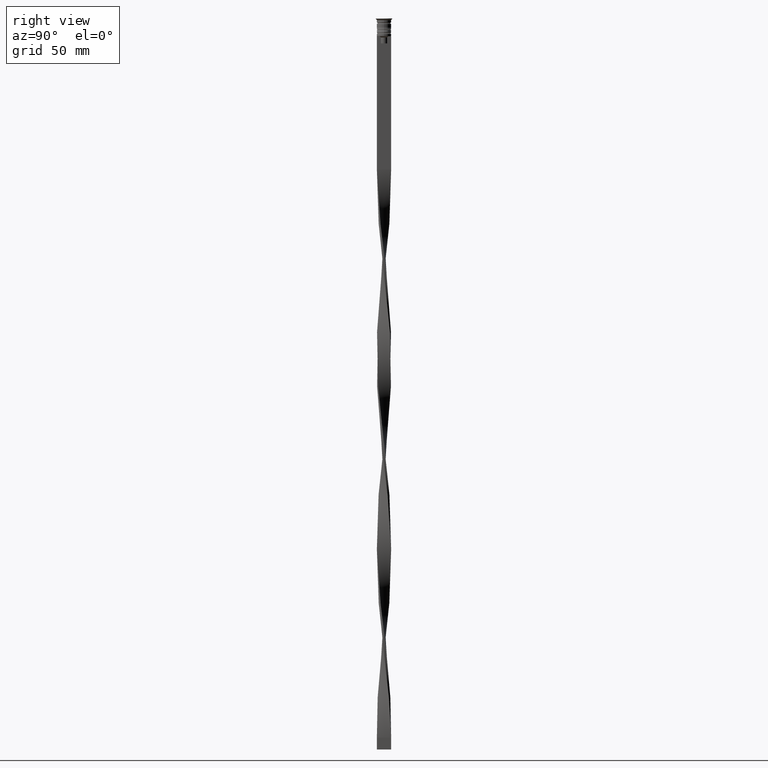
[diagram: clean part render]
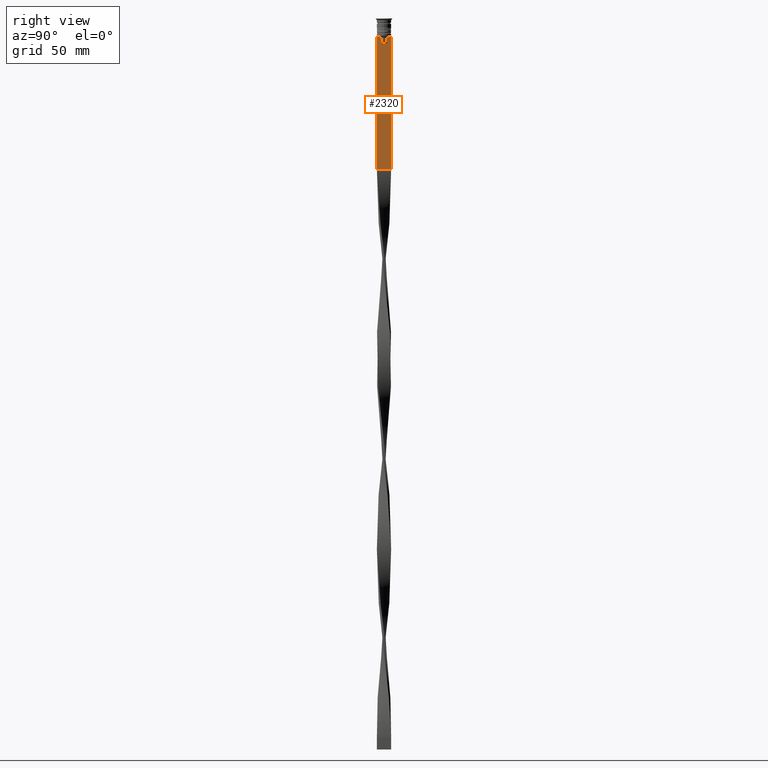
[diagram: same view with one face highlighted and labeled with its STEP entity id]
A machine part, right view. The second image highlights one B-rep face of the part: STEP entity #2320.
In plain terms, the highlighted planar face has unit normal (-1, 0, 0).
Its self-contained STEP definition (entity closure, byte-faithful):
#37 = CARTESIAN_POINT ( 'NONE',  ( 0.4999999999999998890, -3.000000000000000000, -7.500000000000000000 ) ) ;
#48 = VERTEX_POINT ( 'NONE', #2417 ) ;
#65 = ORIENTED_EDGE ( 'NONE', *, *, #3732, .T. ) ;
#111 = CARTESIAN_POINT ( 'NONE',  ( 0.4999999999999998890, 2.856571371417139904, -7.500000000000000000 ) ) ;
#142 = VECTOR ( 'NONE', #3695, 1000.000000000000000 ) ;
#182 = LINE ( 'NONE', #471, #3448 ) ;
#203 = VECTOR ( 'NONE', #1855, 1000.000000000000000 ) ;
#222 = VERTEX_POINT ( 'NONE', #1955 ) ;
#259 = VECTOR ( 'NONE', #2016, 1000.000000000000000 ) ;
#292 = LINE ( 'NONE', #2391, #259 ) ;
#379 = ORIENTED_EDGE ( 'NONE', *, *, #3393, .T. ) ;
#404 = VERTEX_POINT ( 'NONE', #807 ) ;
#439 = VECTOR ( 'NONE', #909, 1000.000000000000000 ) ;
#471 = CARTESIAN_POINT ( 'NONE',  ( 0.4999999999999998890, -3.000000000000000000, -1.417237469701779329 ) ) ;
#596 = CARTESIAN_POINT ( 'NONE',  ( 0.4999999999999998890, -1.307669683062199439, -8.000000000000000000 ) ) ;
#600 = EDGE_CURVE ( 'NONE', #929, #3037, #2100, .T. ) ;
#644 = CARTESIAN_POINT ( 'NONE',  ( 0.4999999999999998890, -3.000000000000000000, -7.500000000000000000 ) ) ;
#647 = ORIENTED_EDGE ( 'NONE', *, *, #1903, .T. ) ;
#655 = LINE ( 'NONE', #3095, #3390 ) ;
#751 = VERTEX_POINT ( 'NONE', #1308 ) ;
#807 = CARTESIAN_POINT ( 'NONE',  ( 0.4999999999999998890, -3.000000000000000000, -7.500000000000000000 ) ) ;
#909 = DIRECTION ( 'NONE',  ( 0.000000000000000000, -1.000000000000000000, 0.000000000000000000 ) ) ;
#929 = VERTEX_POINT ( 'NONE', #111 ) ;
#932 = LINE ( 'NONE', #1553, #1735 ) ;
#950 = CARTESIAN_POINT ( 'NONE',  ( 0.4999999999999998890, 3.000000000000000000, -1.417237469701779329 ) ) ;
#995 = CARTESIAN_POINT ( 'NONE',  ( 0.4999999999999998890, 1.833030277982335754, -7.500000000000000000 ) ) ;
#1064 = CARTESIAN_POINT ( 'NONE',  ( 0.4999999999999998890, -1.833030277982335754, -7.500000000000000000 ) ) ;
#1192 = EDGE_CURVE ( 'NONE', #751, #222, #292, .T. ) ;
#1197 = CARTESIAN_POINT ( 'NONE',  ( 0.4999999999999998890, -1.484307477388859153, -7.835011508197190722 ) ) ;
#1202 = CARTESIAN_POINT ( 'NONE',  ( 0.4999999999999998890, -3.000000000000000000, -7.500000000000000000 ) ) ;
#1232 = LINE ( 'NONE', #2467, #3582 ) ;
#1236 = ORIENTED_EDGE ( 'NONE', *, *, #1192, .T. ) ;
#1241 = LINE ( 'NONE', #950, #203 ) ;
#1269 = DIRECTION ( 'NONE',  ( -0.000000000000000000, -0.000000000000000000, 1.000000000000000000 ) ) ;
#1271 = VERTEX_POINT ( 'NONE', #2317 ) ;
#1308 = CARTESIAN_POINT ( 'NONE',  ( 0.4999999999999998890, 1.307669683062199439, -8.000000000000000000 ) ) ;
#1342 = FACE_OUTER_BOUND ( 'NONE', #1608, .T. ) ;
#1355 = ORIENTED_EDGE ( 'NONE', *, *, #3851, .T. ) ;
#1379 = CARTESIAN_POINT ( 'NONE',  ( 0.4999999999999998890, -3.000000000000000000, -1.417237469701779329 ) ) ;
#1539 = VECTOR ( 'NONE', #1564, 1000.000000000000000 ) ;
#1553 = CARTESIAN_POINT ( 'NONE',  ( 0.4999999999999998890, -3.000000000000000000, -63.50000000000000000 ) ) ;
#1562 = ORIENTED_EDGE ( 'NONE', *, *, #2517, .T. ) ;
#1564 = DIRECTION ( 'NONE',  ( 0.000000000000000000, -1.000000000000000000, 0.000000000000000000 ) ) ;
#1565 = CARTESIAN_POINT ( 'NONE',  ( 0.4999999999999998890, -1.307669683062199439, -8.000000000000000000 ) ) ;
#1567 = ORIENTED_EDGE ( 'NONE', *, *, #600, .T. ) ;
#1608 = EDGE_LOOP ( 'NONE', ( #1567, #2255, #1236, #2385, #65, #1562, #647, #3823, #2357, #379, #1809, #1355 ) ) ;
#1709 = VERTEX_POINT ( 'NONE', #3005 ) ;
#1735 = VECTOR ( 'NONE', #3031, 1000.000000000000000 ) ;
#1781 = CARTESIAN_POINT ( 'NONE',  ( 0.4999999999999998890, 1.484355510416485835, -7.834966642958598015 ) ) ;
#1809 = ORIENTED_EDGE ( 'NONE', *, *, #2540, .F. ) ;
#1855 = DIRECTION ( 'NONE',  ( 0.000000000000000000, 0.000000000000000000, -1.000000000000000000 ) ) ;
#1889 = DIRECTION ( 'NONE',  ( 0.000000000000000000, -1.000000000000000000, 0.000000000000000000 ) ) ;
#1903 = EDGE_CURVE ( 'NONE', #2249, #1271, #3938, .T. ) ;
#1922 = AXIS2_PLACEMENT_3D ( 'NONE', #1379, #2597, #3813 ) ;
#1955 = CARTESIAN_POINT ( 'NONE',  ( 0.4999999999999998890, 1.307669683062199439, -10.49999999999999822 ) ) ;
#2013 = B_SPLINE_CURVE_WITH_KNOTS ( 'NONE', 3,
 ( #995, #3392, #1781, #2479 ),
 .UNSPECIFIED., .F., .F.,
 ( 4, 4 ),
 ( 0.003278537493109848298, 0.004003794023484941178 ),
 .UNSPECIFIED. ) ;
#2016 = DIRECTION ( 'NONE',  ( 0.000000000000000000, 0.000000000000000000, -1.000000000000000000 ) ) ;
#2100 = LINE ( 'NONE', #1202, #1539 ) ;
#2107 = CARTESIAN_POINT ( 'NONE',  ( 0.4999999999999998890, -3.000000000000000000, -7.500000000000000000 ) ) ;
#2198 = DIRECTION ( 'NONE',  ( 0.000000000000000000, -1.000000000000000000, 0.000000000000000000 ) ) ;
#2249 = VERTEX_POINT ( 'NONE', #1064 ) ;
#2255 = ORIENTED_EDGE ( 'NONE', *, *, #3897, .T. ) ;
#2317 = CARTESIAN_POINT ( 'NONE',  ( 0.4999999999999998890, -2.856571371417139904, -7.500000000000000000 ) ) ;
#2320 = ADVANCED_FACE ( 'NONE', ( #1342 ), #3172, .F. ) ;
#2357 = ORIENTED_EDGE ( 'NONE', *, *, #2383, .T. ) ;
#2381 = CARTESIAN_POINT ( 'NONE',  ( 0.4999999999999998890, 1.833030277982335754, -7.500000000000000000 ) ) ;
#2383 = EDGE_CURVE ( 'NONE', #404, #1709, #182, .T. ) ;
#2385 = ORIENTED_EDGE ( 'NONE', *, *, #3193, .T. ) ;
#2391 = CARTESIAN_POINT ( 'NONE',  ( 0.4999999999999998890, 1.307669683062199439, 0.000000000000000000 ) ) ;
#2417 = CARTESIAN_POINT ( 'NONE',  ( 0.4999999999999998890, -1.307669683062199439, -10.49999999999999822 ) ) ;
#2451 = VERTEX_POINT ( 'NONE', #3533 ) ;
#2467 = CARTESIAN_POINT ( 'NONE',  ( 0.4999999999999998890, -1.307669683062199439, 0.000000000000000000 ) ) ;
#2479 = CARTESIAN_POINT ( 'NONE',  ( 0.4999999999999998890, 1.307669683062199439, -8.000000000000000000 ) ) ;
#2517 = EDGE_CURVE ( 'NONE', #3595, #2249, #2520, .T. ) ;
#2520 = B_SPLINE_CURVE_WITH_KNOTS ( 'NONE', 3,
 ( #596, #1197, #3080, #2732 ),
 .UNSPECIFIED., .F., .F.,
 ( 4, 4 ),
 ( 0.007225659348748082224, 0.007950554640278054835 ),
 .UNSPECIFIED. ) ;
#2536 = LINE ( 'NONE', #37, #142 ) ;
#2540 = EDGE_CURVE ( 'NONE', #3348, #2451, #1241, .T. ) ;
#2565 = VECTOR ( 'NONE', #1889, 1000.000000000000000 ) ;
#2597 = DIRECTION ( 'NONE',  ( -1.000000000000000000, 0.000000000000000000, 0.000000000000000000 ) ) ;
#2656 = DIRECTION ( 'NONE',  ( 0.000000000000000000, 0.000000000000000000, -1.000000000000000000 ) ) ;
#2732 = CARTESIAN_POINT ( 'NONE',  ( 0.4999999999999998890, -1.833030277982335754, -7.500000000000000000 ) ) ;
#3005 = CARTESIAN_POINT ( 'NONE',  ( 0.4999999999999998890, -3.000000000000000000, -63.50000000000000000 ) ) ;
#3031 = DIRECTION ( 'NONE',  ( 0.000000000000000000, 1.000000000000000000, 0.000000000000000000 ) ) ;
#3037 = VERTEX_POINT ( 'NONE', #2381 ) ;
#3080 = CARTESIAN_POINT ( 'NONE',  ( 0.4999999999999998890, -1.659011726860414093, -7.667884880598472286 ) ) ;
#3095 = CARTESIAN_POINT ( 'NONE',  ( 0.4999999999999998890, 1.399999999999997691, -10.49999999999999822 ) ) ;
#3172 = PLANE ( 'NONE',  #1922 ) ;
#3193 = EDGE_CURVE ( 'NONE', #222, #48, #655, .T. ) ;
#3348 = VERTEX_POINT ( 'NONE', #3387 ) ;
#3375 = LINE ( 'NONE', #644, #2565 ) ;
#3387 = CARTESIAN_POINT ( 'NONE',  ( 0.4999999999999998890, 3.000000000000000000, -7.500000000000000000 ) ) ;
#3390 = VECTOR ( 'NONE', #2198, 1000.000000000000000 ) ;
#3392 = CARTESIAN_POINT ( 'NONE',  ( 0.4999999999999998890, 1.659046061654642967, -7.667851756010362507 ) ) ;
#3393 = EDGE_CURVE ( 'NONE', #1709, #2451, #932, .T. ) ;
#3448 = VECTOR ( 'NONE', #2656, 1000.000000000000000 ) ;
#3533 = CARTESIAN_POINT ( 'NONE',  ( 0.4999999999999998890, 3.000000000000000000, -63.50000000000000000 ) ) ;
#3582 = VECTOR ( 'NONE', #1269, 1000.000000000000000 ) ;
#3595 = VERTEX_POINT ( 'NONE', #1565 ) ;
#3680 = EDGE_CURVE ( 'NONE', #1271, #404, #3375, .T. ) ;
#3695 = DIRECTION ( 'NONE',  ( 0.000000000000000000, -1.000000000000000000, 0.000000000000000000 ) ) ;
#3732 = EDGE_CURVE ( 'NONE', #48, #3595, #1232, .T. ) ;
#3813 = DIRECTION ( 'NONE',  ( 0.000000000000000000, 0.000000000000000000, 1.000000000000000000 ) ) ;
#3823 = ORIENTED_EDGE ( 'NONE', *, *, #3680, .T. ) ;
#3851 = EDGE_CURVE ( 'NONE', #3348, #929, #2536, .T. ) ;
#3897 = EDGE_CURVE ( 'NONE', #3037, #751, #2013, .T. ) ;
#3938 = LINE ( 'NONE', #2107, #439 ) ;